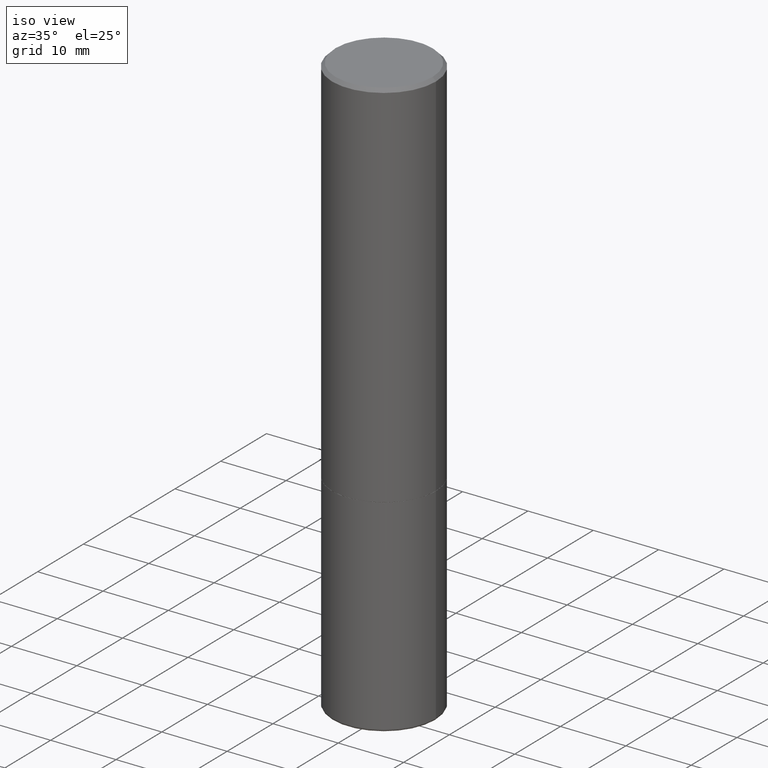
[diagram: clean part render]
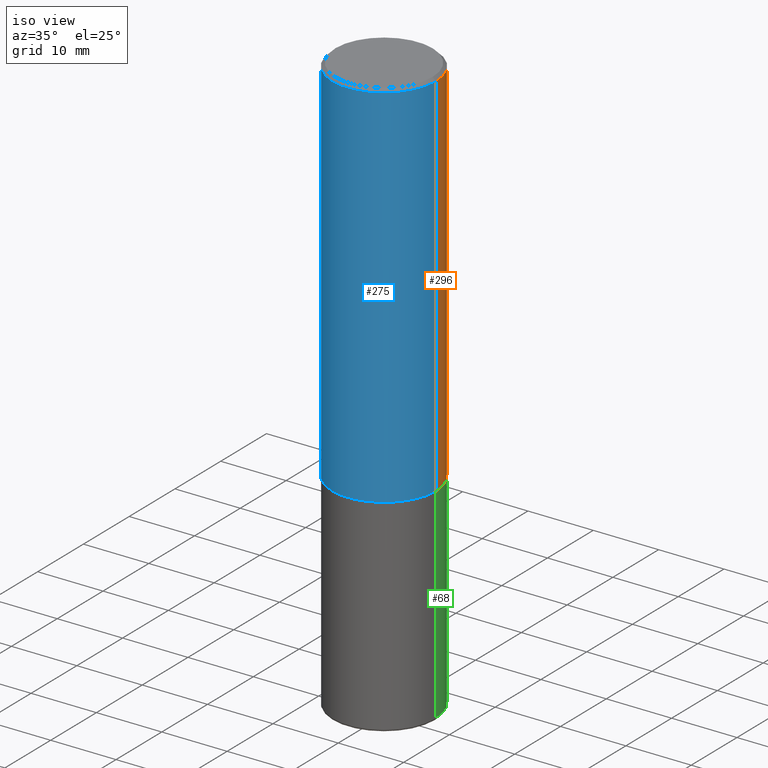
[diagram: same view with three faces highlighted in distinct colors, each labeled with its STEP entity id]
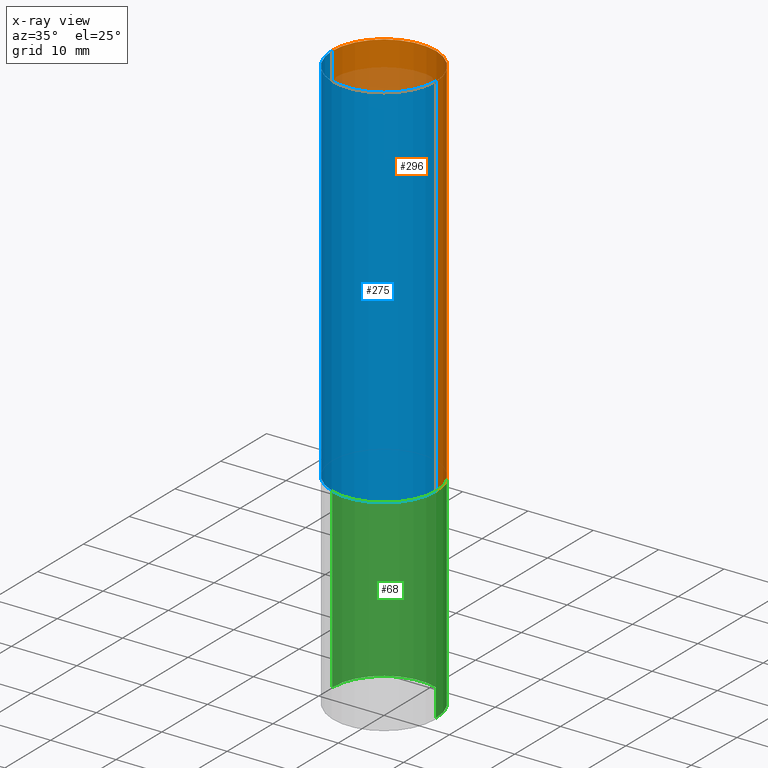
[diagram: x-ray of the same camera — body ghosted, the three highlighted faces saturated]
A machine part, iso view with three faces highlighted in distinct colors.
The next image is the same camera in x-ray (body ghosted, the three faces saturated) — at least one of them is partly hidden behind the body in this view.
Their STEP definitions:

[orange] entity #296 — the highlighted cylindrical surface (partial cylindrical patch) has radius 7.9375 mm, axis along (-0, 0, 1).
#1 = DIRECTION ( 'NONE',  ( 1.000000000000000000, -6.982962677686265133E-15, 0.000000000000000000 ) ) ;
#8 = EDGE_CURVE ( 'NONE', #421, #280, #297, .T. ) ;
#20 = CARTESIAN_POINT ( 'NONE',  ( -0.3125000000000000000, -1.740639529667232739E-15, -2.248999999999999222 ) ) ;
#35 = CARTESIAN_POINT ( 'NONE',  ( -0.3124999999999998335, 2.112346210000093866E-15, -0.02000000000000002123 ) ) ;
#44 = VERTEX_POINT ( 'NONE', #278 ) ;
#54 = VECTOR ( 'NONE', #305, 39.37007874015748143 ) ;
#56 = DIRECTION ( 'NONE',  ( 1.000000000000000000, -6.982962677686269077E-15, 0.000000000000000000 ) ) ;
#78 = DIRECTION ( 'NONE',  ( 1.000000000000000000, -6.982962677686266711E-15, 4.876176775795935232E-29 ) ) ;
#90 = DIRECTION ( 'NONE',  ( -2.445468806185136597E-29, 3.491481338843145583E-15, 1.000000000000000000 ) ) ;
#108 = ORIENTED_EDGE ( 'NONE', *, *, #8, .F. ) ;
#116 = CARTESIAN_POINT ( 'NONE',  ( 0.3124999999999998890, -2.182175836776957558E-15, 1.523805242436229235E-29 ) ) ;
#125 = CARTESIAN_POINT ( 'NONE',  ( 0.000000000000000000, 0.000000000000000000, 0.000000000000000000 ) ) ;
#130 = EDGE_CURVE ( 'NONE', #44, #156, #133, .T. ) ;
#133 = CIRCLE ( 'NONE', #245, 0.3125000000000000000 ) ;
#136 = FACE_OUTER_BOUND ( 'NONE', #208, .T. ) ;
#146 = EDGE_CURVE ( 'NONE', #44, #421, #368, .T. ) ;
#156 = VERTEX_POINT ( 'NONE', #20 ) ;
#161 = CARTESIAN_POINT ( 'NONE',  ( 4.890937612370278413E-31, -6.982962677686297772E-17, -0.02000000000000002123 ) ) ;
#162 = CARTESIAN_POINT ( 'NONE',  ( -0.3124999999999998890, 2.220446049250312292E-15, -1.537167215704657391E-29 ) ) ;
#208 = EDGE_LOOP ( 'NONE', ( #348, #431, #108, #301 ) ) ;
#213 = AXIS2_PLACEMENT_3D ( 'NONE', #161, #268, #1 ) ;
#245 = AXIS2_PLACEMENT_3D ( 'NONE', #397, #90, #56 ) ;
#252 = DIRECTION ( 'NONE',  ( -2.445468806185136877E-29, 3.491481338843145188E-15, 1.000000000000000000 ) ) ;
#258 = CYLINDRICAL_SURFACE ( 'NONE', #271, 0.3124999999999998890 ) ;
#268 = DIRECTION ( 'NONE',  ( -2.445468806185136597E-29, 3.491481338843145583E-15, 1.000000000000000000 ) ) ;
#271 = AXIS2_PLACEMENT_3D ( 'NONE', #125, #401, #78 ) ;
#278 = CARTESIAN_POINT ( 'NONE',  ( 0.3125000000000000000, -1.003451736783519063E-14, -2.248999999999999222 ) ) ;
#280 = VERTEX_POINT ( 'NONE', #35 ) ;
#296 = ADVANCED_FACE ( 'NONE', ( #136 ), #258, .T. ) ;
#297 = CIRCLE ( 'NONE', #213, 0.3124999999999998335 ) ;
#301 = ORIENTED_EDGE ( 'NONE', *, *, #146, .F. ) ;
#305 = DIRECTION ( 'NONE',  ( -2.445468806185136877E-29, 3.491481338843145188E-15, 1.000000000000000000 ) ) ;
#319 = VECTOR ( 'NONE', #252, 39.37007874015748143 ) ;
#334 = CARTESIAN_POINT ( 'NONE',  ( 0.3124999999999998335, -2.213735251080465334E-15, -0.02000000000000002123 ) ) ;
#348 = ORIENTED_EDGE ( 'NONE', *, *, #130, .T. ) ;
#368 = LINE ( 'NONE', #116, #319 ) ;
#397 = CARTESIAN_POINT ( 'NONE',  ( 5.499859345110370619E-29, -7.852341531058232286E-15, -2.248999999999999222 ) ) ;
#401 = DIRECTION ( 'NONE',  ( -2.445468806185136597E-29, 3.491481338843145583E-15, 1.000000000000000000 ) ) ;
#404 = EDGE_CURVE ( 'NONE', #156, #280, #405, .T. ) ;
#405 = LINE ( 'NONE', #162, #54 ) ;
#421 = VERTEX_POINT ( 'NONE', #334 ) ;
#431 = ORIENTED_EDGE ( 'NONE', *, *, #404, .T. ) ;

[blue] entity #275 — the highlighted cylindrical surface (partial cylindrical patch) has radius 7.9375 mm, axis along (-0, 0, 1).
#17 = ORIENTED_EDGE ( 'NONE', *, *, #404, .F. ) ;
#20 = CARTESIAN_POINT ( 'NONE',  ( -0.3125000000000000000, -1.740639529667232739E-15, -2.248999999999999222 ) ) ;
#35 = CARTESIAN_POINT ( 'NONE',  ( -0.3124999999999998335, 2.112346210000093866E-15, -0.02000000000000002123 ) ) ;
#44 = VERTEX_POINT ( 'NONE', #278 ) ;
#54 = VECTOR ( 'NONE', #305, 39.37007874015748143 ) ;
#67 = DIRECTION ( 'NONE',  ( 1.000000000000000000, -6.982962677686269077E-15, 0.000000000000000000 ) ) ;
#70 = DIRECTION ( 'NONE',  ( -2.445468806185136597E-29, 3.491481338843145583E-15, 1.000000000000000000 ) ) ;
#88 = EDGE_LOOP ( 'NONE', ( #17, #351, #251, #91 ) ) ;
#91 = ORIENTED_EDGE ( 'NONE', *, *, #386, .F. ) ;
#92 = CIRCLE ( 'NONE', #240, 0.3125000000000000000 ) ;
#94 = DIRECTION ( 'NONE',  ( -2.445468806185136597E-29, 3.491481338843145583E-15, 1.000000000000000000 ) ) ;
#116 = CARTESIAN_POINT ( 'NONE',  ( 0.3124999999999998890, -2.182175836776957558E-15, 1.523805242436229235E-29 ) ) ;
#142 = AXIS2_PLACEMENT_3D ( 'NONE', #302, #197, #263 ) ;
#146 = EDGE_CURVE ( 'NONE', #44, #421, #368, .T. ) ;
#156 = VERTEX_POINT ( 'NONE', #20 ) ;
#162 = CARTESIAN_POINT ( 'NONE',  ( -0.3124999999999998890, 2.220446049250312292E-15, -1.537167215704657391E-29 ) ) ;
#190 = CARTESIAN_POINT ( 'NONE',  ( 5.499859345110370619E-29, -7.852341531058232286E-15, -2.248999999999999222 ) ) ;
#197 = DIRECTION ( 'NONE',  ( -2.445468806185136597E-29, 3.491481338843145583E-15, 1.000000000000000000 ) ) ;
#237 = FACE_OUTER_BOUND ( 'NONE', #88, .T. ) ;
#240 = AXIS2_PLACEMENT_3D ( 'NONE', #190, #94, #67 ) ;
#251 = ORIENTED_EDGE ( 'NONE', *, *, #146, .T. ) ;
#252 = DIRECTION ( 'NONE',  ( -2.445468806185136877E-29, 3.491481338843145188E-15, 1.000000000000000000 ) ) ;
#263 = DIRECTION ( 'NONE',  ( 1.000000000000000000, -6.982962677686265133E-15, 0.000000000000000000 ) ) ;
#269 = CIRCLE ( 'NONE', #142, 0.3124999999999998335 ) ;
#275 = ADVANCED_FACE ( 'NONE', ( #237 ), #380, .T. ) ;
#278 = CARTESIAN_POINT ( 'NONE',  ( 0.3125000000000000000, -1.003451736783519063E-14, -2.248999999999999222 ) ) ;
#280 = VERTEX_POINT ( 'NONE', #35 ) ;
#302 = CARTESIAN_POINT ( 'NONE',  ( 4.890937612370278413E-31, -6.982962677686297772E-17, -0.02000000000000002123 ) ) ;
#305 = DIRECTION ( 'NONE',  ( -2.445468806185136877E-29, 3.491481338843145188E-15, 1.000000000000000000 ) ) ;
#319 = VECTOR ( 'NONE', #252, 39.37007874015748143 ) ;
#322 = EDGE_CURVE ( 'NONE', #156, #44, #92, .T. ) ;
#334 = CARTESIAN_POINT ( 'NONE',  ( 0.3124999999999998335, -2.213735251080465334E-15, -0.02000000000000002123 ) ) ;
#344 = DIRECTION ( 'NONE',  ( 1.000000000000000000, -6.982962677686266711E-15, 4.876176775795935232E-29 ) ) ;
#351 = ORIENTED_EDGE ( 'NONE', *, *, #322, .T. ) ;
#368 = LINE ( 'NONE', #116, #319 ) ;
#371 = AXIS2_PLACEMENT_3D ( 'NONE', #410, #70, #344 ) ;
#380 = CYLINDRICAL_SURFACE ( 'NONE', #371, 0.3124999999999998890 ) ;
#386 = EDGE_CURVE ( 'NONE', #280, #421, #269, .T. ) ;
#404 = EDGE_CURVE ( 'NONE', #156, #280, #405, .T. ) ;
#405 = LINE ( 'NONE', #162, #54 ) ;
#410 = CARTESIAN_POINT ( 'NONE',  ( 0.000000000000000000, 0.000000000000000000, 0.000000000000000000 ) ) ;
#421 = VERTEX_POINT ( 'NONE', #334 ) ;

[green] entity #68 — the highlighted cylindrical surface (partial cylindrical patch) has radius 7.9375 mm, axis along (-0, 0, 1).
#5 = EDGE_CURVE ( 'NONE', #153, #212, #435, .T. ) ;
#10 = VERTEX_POINT ( 'NONE', #127 ) ;
#41 = VERTEX_POINT ( 'NONE', #378 ) ;
#45 = VECTOR ( 'NONE', #313, 39.37007874015748143 ) ;
#52 = ORIENTED_EDGE ( 'NONE', *, *, #256, .F. ) ;
#55 = CARTESIAN_POINT ( 'NONE',  ( -0.3125000000000002776, -7.791412577036125389E-15, -3.485020556978680073 ) ) ;
#57 = CIRCLE ( 'NONE', #375, 0.3125000000000002776 ) ;
#61 = CYLINDRICAL_SURFACE ( 'NONE', #98, 0.3125000000000001665 ) ;
#68 = ADVANCED_FACE ( 'NONE', ( #71 ), #61, .T. ) ;
#71 = FACE_OUTER_BOUND ( 'NONE', #288, .T. ) ;
#98 = AXIS2_PLACEMENT_3D ( 'NONE', #192, #234, #338 ) ;
#99 = LINE ( 'NONE', #126, #367 ) ;
#103 = DIRECTION ( 'NONE',  ( -2.445468806185136597E-29, 3.491481338843145583E-15, 1.000000000000000000 ) ) ;
#126 = CARTESIAN_POINT ( 'NONE',  ( 0.3125000000000001665, -2.182175836776959530E-15, 1.523805242436230636E-29 ) ) ;
#127 = CARTESIAN_POINT ( 'NONE',  ( 0.3125000000000002776, -1.435006007695276788E-14, -3.485020556978680073 ) ) ;
#148 = ORIENTED_EDGE ( 'NONE', *, *, #5, .T. ) ;
#153 = VERTEX_POINT ( 'NONE', #55 ) ;
#160 = EDGE_CURVE ( 'NONE', #10, #153, #57, .T. ) ;
#192 = CARTESIAN_POINT ( 'NONE',  ( 0.000000000000000000, 0.000000000000000000, 0.000000000000000000 ) ) ;
#206 = CARTESIAN_POINT ( 'NONE',  ( 5.502304813916556222E-29, -7.855833012397075293E-15, -2.249999999999999556 ) ) ;
#212 = VERTEX_POINT ( 'NONE', #392 ) ;
#226 = AXIS2_PLACEMENT_3D ( 'NONE', #206, #103, #347 ) ;
#234 = DIRECTION ( 'NONE',  ( -2.445468806185136597E-29, 3.491481338843145583E-15, 1.000000000000000000 ) ) ;
#256 = EDGE_CURVE ( 'NONE', #41, #212, #384, .T. ) ;
#288 = EDGE_LOOP ( 'NONE', ( #290, #148, #52, #318 ) ) ;
#290 = ORIENTED_EDGE ( 'NONE', *, *, #160, .T. ) ;
#313 = DIRECTION ( 'NONE',  ( -2.445468806185136877E-29, 3.491481338843145188E-15, 1.000000000000000000 ) ) ;
#318 = ORIENTED_EDGE ( 'NONE', *, *, #430, .F. ) ;
#338 = DIRECTION ( 'NONE',  ( 1.000000000000000000, -6.982962677686266711E-15, 4.876176775795935232E-29 ) ) ;
#347 = DIRECTION ( 'NONE',  ( 1.000000000000000000, -6.982962677686265133E-15, 0.000000000000000000 ) ) ;
#367 = VECTOR ( 'NONE', #399, 39.37007874015748143 ) ;
#369 = DIRECTION ( 'NONE',  ( -2.445468806185136597E-29, 3.491481338843145583E-15, 1.000000000000000000 ) ) ;
#375 = AXIS2_PLACEMENT_3D ( 'NONE', #427, #369, #396 ) ;
#378 = CARTESIAN_POINT ( 'NONE',  ( 0.3125000000000000000, -1.003800884917403364E-14, -2.249999999999999556 ) ) ;
#384 = CIRCLE ( 'NONE', #226, 0.3125000000000000000 ) ;
#392 = CARTESIAN_POINT ( 'NONE',  ( -0.3125000000000000000, -7.791412577036126966E-15, -2.249999999999999556 ) ) ;
#396 = DIRECTION ( 'NONE',  ( 1.000000000000000000, -6.982962677686269077E-15, 0.000000000000000000 ) ) ;
#399 = DIRECTION ( 'NONE',  ( -2.445468806185136877E-29, 3.491481338843145188E-15, 1.000000000000000000 ) ) ;
#412 = CARTESIAN_POINT ( 'NONE',  ( -0.3125000000000001665, 2.220446049250314264E-15, -1.537167215704658792E-29 ) ) ;
#427 = CARTESIAN_POINT ( 'NONE',  ( 8.522509061005312396E-29, -1.216788424017580638E-14, -3.485020556978680073 ) ) ;
#430 = EDGE_CURVE ( 'NONE', #10, #41, #99, .T. ) ;
#435 = LINE ( 'NONE', #412, #45 ) ;